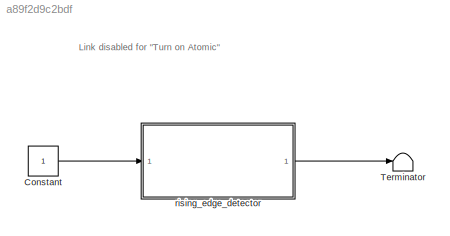
MODEL slx_a89f2d9c2bdf
KIND model
CONFIG AbsTol = auto
CONFIG EnableMultiTasking = off
CONFIG FixedStep = auto
CONFIG MaxStep = auto
CONFIG MinStep = auto
CONFIG RelTol = 1e-3
CONFIG SampleTimeConstraint = Unconstrained
CONFIG SolverName = FixedStepDiscrete
CONFIG StartTime = 0.0
CONFIG StopTime = 10.0
BLOCK [Constant] Constant
  OutDataTypeStr = boolean
  SampleTime = 1
BLOCK [Terminator] Terminator
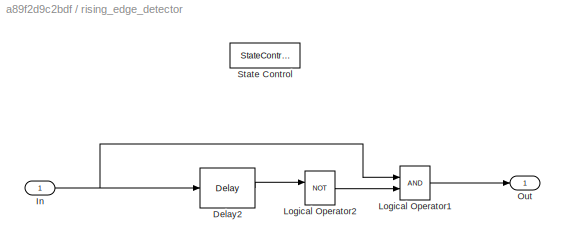
BLOCK [SubSystem] rising_edge_detector
  AncestorBlock = HDL_ieee_8021513/rising_edge_detector
  TreatAsAtomicUnit = on
BLOCK [Delay] rising_edge_detector/Delay2
  DelayLength = 1
  InitialCondition = 0
  InputPortMap = u0
  UseCircularBuffer = on
  UserDataPersistent = on
BLOCK [Inport] rising_edge_detector/In
BLOCK [Logic] rising_edge_detector/Logical Operator1
  AllPortsSameDT = off
  IconShape = distinctive
  OutDataTypeStr = boolean
BLOCK [Logic] rising_edge_detector/Logical Operator2
  AllPortsSameDT = off
  IconShape = distinctive
  Operator = NOT
  OutDataTypeStr = boolean
BLOCK [Outport] rising_edge_detector/Out
BLOCK [StateControl] rising_edge_detector/State Control
  StateControl = Synchronous
ANNOTATION (root): Link disabled for "Turn on Atomic"
LINE Constant:1 -> rising_edge_detector:1
LINE rising_edge_detector:1 -> Terminator:1
